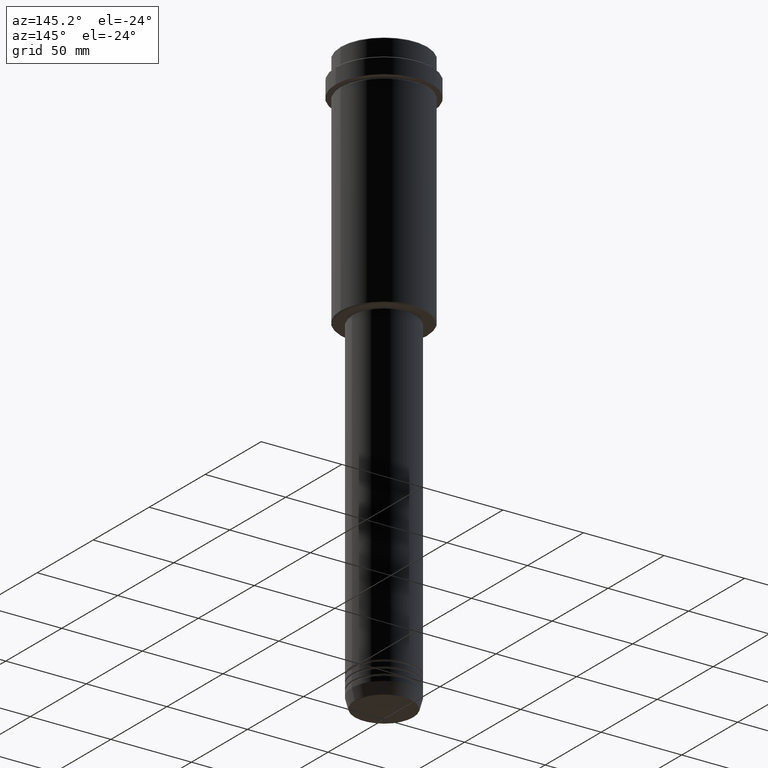
[diagram: clean part render]
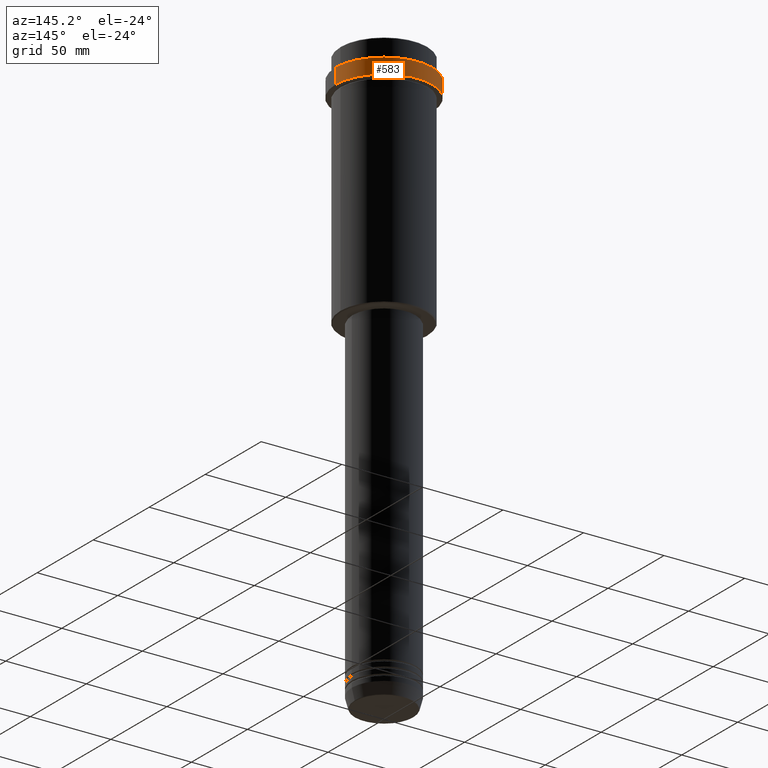
[diagram: same view with one face highlighted and labeled with its STEP entity id]
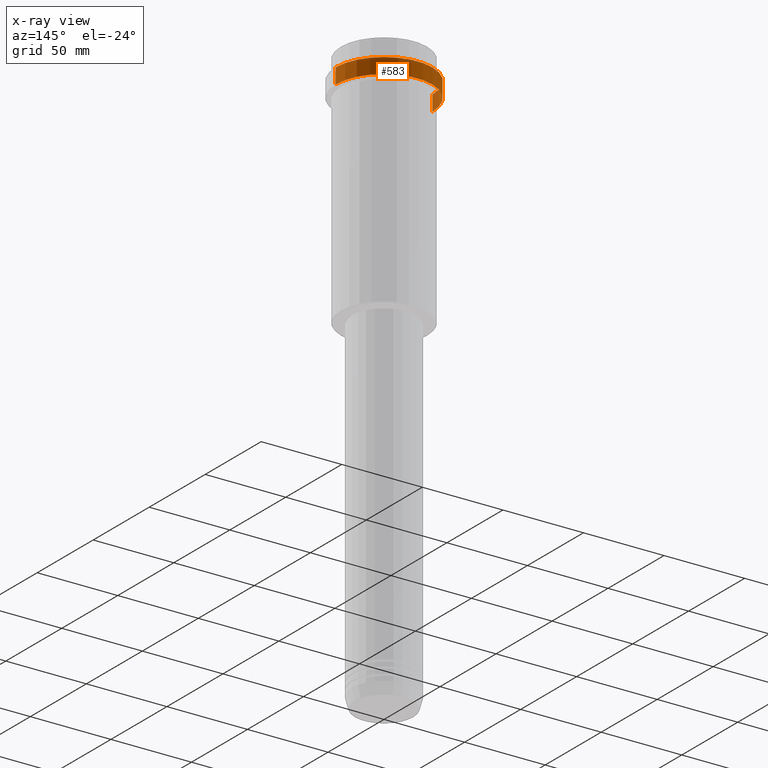
[diagram: x-ray of the same camera — body ghosted, the highlighted face saturated]
A machine part, auxiliary view. The second image highlights one B-rep face of the part: STEP entity #583.
The next image is the same camera in x-ray: the body ghosted, the highlighted face saturated — about 0% of this face is hidden behind the body in this view.
In plain terms, the highlighted cylindrical surface (partial cylindrical patch) has radius 30 mm, axis along (-0, -0, 1).
Its self-contained STEP definition (entity closure, byte-faithful):
#18 = EDGE_CURVE ( 'NONE', #598, #779, #334, .T. ) ;
#32 = ORIENTED_EDGE ( 'NONE', *, *, #858, .T. ) ;
#49 = DIRECTION ( 'NONE',  ( 1.000000000000000000, 0.000000000000000000, 0.000000000000000000 ) ) ;
#63 = CARTESIAN_POINT ( 'NONE',  ( 0.000000000000000000, 0.000000000000000000, -12.50000000000006573 ) ) ;
#83 = CARTESIAN_POINT ( 'NONE',  ( 0.000000000000000000, 0.000000000000000000, -22.00000000000000355 ) ) ;
#145 = CARTESIAN_POINT ( 'NONE',  ( 29.99999999999999645, 0.000000000000000000, -22.00000000000000355 ) ) ;
#148 = EDGE_CURVE ( 'NONE', #1359, #779, #327, .T. ) ;
#210 = CARTESIAN_POINT ( 'NONE',  ( -30.00000000000000000, 3.673940397442059178E-15, -12.50000000000006573 ) ) ;
#263 = FACE_OUTER_BOUND ( 'NONE', #617, .T. ) ;
#304 = AXIS2_PLACEMENT_3D ( 'NONE', #63, #720, #49 ) ;
#327 = CIRCLE ( 'NONE', #304, 30.00000000000000000 ) ;
#334 = LINE ( 'NONE', #1302, #840 ) ;
#341 = DIRECTION ( 'NONE',  ( -0.000000000000000000, -0.000000000000000000, 1.000000000000000000 ) ) ;
#415 = CARTESIAN_POINT ( 'NONE',  ( -30.00000000000000000, 3.673940397442059178E-15, 0.000000000000000000 ) ) ;
#422 = AXIS2_PLACEMENT_3D ( 'NONE', #907, #585, #1369 ) ;
#513 = DIRECTION ( 'NONE',  ( -0.000000000000000000, -0.000000000000000000, 1.000000000000000000 ) ) ;
#583 = ADVANCED_FACE ( 'NONE', ( #263 ), #1022, .T. ) ;
#585 = DIRECTION ( 'NONE',  ( -0.000000000000000000, -0.000000000000000000, 1.000000000000000000 ) ) ;
#598 = VERTEX_POINT ( 'NONE', #145 ) ;
#605 = AXIS2_PLACEMENT_3D ( 'NONE', #83, #513, #1158 ) ;
#617 = EDGE_LOOP ( 'NONE', ( #1159, #32, #933, #1187 ) ) ;
#626 = VECTOR ( 'NONE', #1172, 1000.000000000000000 ) ;
#720 = DIRECTION ( 'NONE',  ( 0.000000000000000000, 0.000000000000000000, -1.000000000000000000 ) ) ;
#778 = EDGE_CURVE ( 'NONE', #598, #857, #824, .T. ) ;
#779 = VERTEX_POINT ( 'NONE', #930 ) ;
#824 = CIRCLE ( 'NONE', #605, 29.99999999999999645 ) ;
#840 = VECTOR ( 'NONE', #341, 1000.000000000000000 ) ;
#857 = VERTEX_POINT ( 'NONE', #1292 ) ;
#858 = EDGE_CURVE ( 'NONE', #857, #1359, #1094, .T. ) ;
#907 = CARTESIAN_POINT ( 'NONE',  ( 0.000000000000000000, 0.000000000000000000, 0.000000000000000000 ) ) ;
#930 = CARTESIAN_POINT ( 'NONE',  ( 30.00000000000000000, 0.000000000000000000, -12.50000000000006573 ) ) ;
#933 = ORIENTED_EDGE ( 'NONE', *, *, #148, .T. ) ;
#1022 = CYLINDRICAL_SURFACE ( 'NONE', #422, 30.00000000000000000 ) ;
#1094 = LINE ( 'NONE', #415, #626 ) ;
#1158 = DIRECTION ( 'NONE',  ( 1.000000000000000000, 0.000000000000000000, 0.000000000000000000 ) ) ;
#1159 = ORIENTED_EDGE ( 'NONE', *, *, #778, .T. ) ;
#1172 = DIRECTION ( 'NONE',  ( -0.000000000000000000, -0.000000000000000000, 1.000000000000000000 ) ) ;
#1187 = ORIENTED_EDGE ( 'NONE', *, *, #18, .F. ) ;
#1292 = CARTESIAN_POINT ( 'NONE',  ( -29.99999999999999645, 3.673940397442058389E-15, -22.00000000000000355 ) ) ;
#1302 = CARTESIAN_POINT ( 'NONE',  ( 30.00000000000000000, 0.000000000000000000, 0.000000000000000000 ) ) ;
#1359 = VERTEX_POINT ( 'NONE', #210 ) ;
#1369 = DIRECTION ( 'NONE',  ( 1.000000000000000000, 0.000000000000000000, 0.000000000000000000 ) ) ;